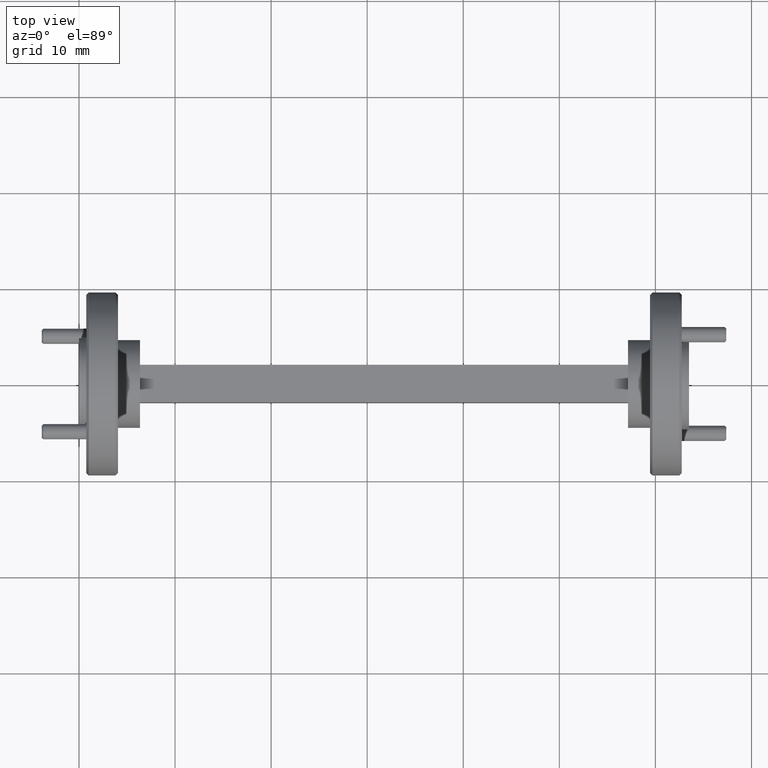
[diagram: clean part render]
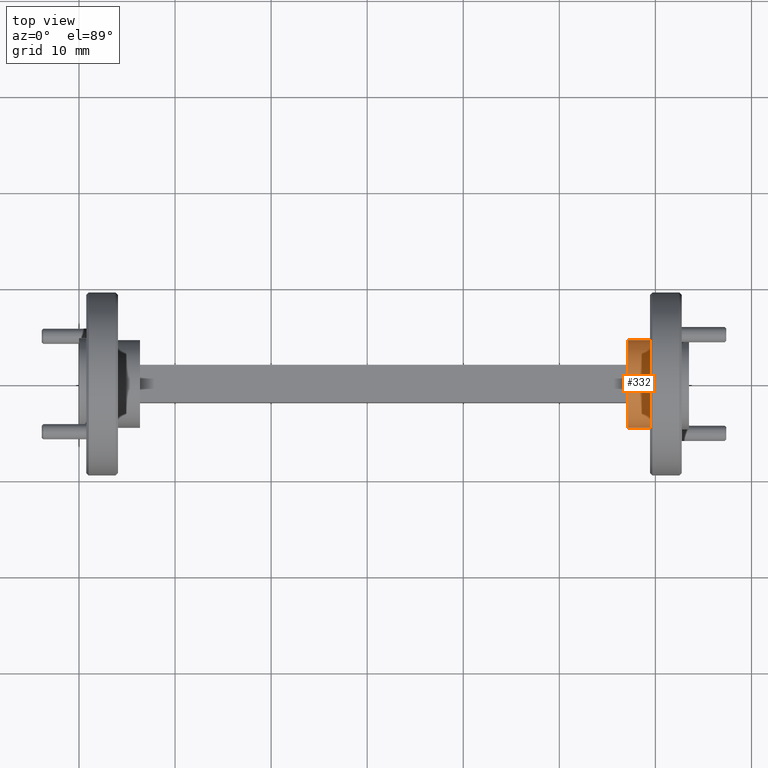
[diagram: same view with one face highlighted and labeled with its STEP entity id]
A machine part, top view. The second image highlights one B-rep face of the part: STEP entity #332.
In plain terms, the highlighted cylindrical surface (partial cylindrical patch) has radius 4.572 mm, axis along (1, 0, -0).
Its self-contained STEP definition (entity closure, byte-faithful):
#198 = ORIENTED_EDGE ( 'NONE', *, *, #3121, .F. ) ;
#269 = CARTESIAN_POINT ( 'NONE',  ( 2.250000000000000000, -0.1799999999999993827, 2.204364238465231508E-17 ) ) ;
#332 = ADVANCED_FACE ( 'NONE', ( #3937 ), #2269, .T. ) ;
#416 = CARTESIAN_POINT ( 'NONE',  ( -1.863127871351692589E-13, 0.1799999999999996603, 0.000000000000000000 ) ) ;
#546 = EDGE_CURVE ( 'NONE', #2319, #1488, #2426, .T. ) ;
#659 = CARTESIAN_POINT ( 'NONE',  ( 2.250000000000000000, 0.1799999999999999378, 0.000000000000000000 ) ) ;
#894 = DIRECTION ( 'NONE',  ( -1.224646799147228962E-16, 1.000000000000000000, 0.000000000000000000 ) ) ;
#1204 = DIRECTION ( 'NONE',  ( 1.000000000000000000, 1.224646799147353454E-16, -0.000000000000000000 ) ) ;
#1215 = ORIENTED_EDGE ( 'NONE', *, *, #3524, .F. ) ;
#1278 = AXIS2_PLACEMENT_3D ( 'NONE', #2891, #1204, #894 ) ;
#1337 = LINE ( 'NONE', #416, #3770 ) ;
#1488 = VERTEX_POINT ( 'NONE', #659 ) ;
#1724 = CARTESIAN_POINT ( 'NONE',  ( 2.340000000000000302, 2.859917723499426963E-16, 0.000000000000000000 ) ) ;
#1761 = DIRECTION ( 'NONE',  ( 1.000000000000000000, 1.224646799147353454E-16, -0.000000000000000000 ) ) ;
#2016 = LINE ( 'NONE', #3041, #2349 ) ;
#2077 = AXIS2_PLACEMENT_3D ( 'NONE', #4141, #4060, #2489 ) ;
#2088 = ORIENTED_EDGE ( 'NONE', *, *, #2336, .T. ) ;
#2269 = CYLINDRICAL_SURFACE ( 'NONE', #1278, 0.1799999999999996603 ) ;
#2319 = VERTEX_POINT ( 'NONE', #269 ) ;
#2336 = EDGE_CURVE ( 'NONE', #2319, #4202, #2016, .T. ) ;
#2349 = VECTOR ( 'NONE', #2724, 39.37007874015748143 ) ;
#2426 = CIRCLE ( 'NONE', #2077, 0.1799999999999996603 ) ;
#2489 = DIRECTION ( 'NONE',  ( 0.000000000000000000, 0.000000000000000000, -1.000000000000000000 ) ) ;
#2644 = CIRCLE ( 'NONE', #2849, 0.1799999999999994937 ) ;
#2724 = DIRECTION ( 'NONE',  ( 1.000000000000000000, 1.224646799147353454E-16, -0.000000000000000000 ) ) ;
#2849 = AXIS2_PLACEMENT_3D ( 'NONE', #1724, #1761, #3115 ) ;
#2891 = CARTESIAN_POINT ( 'NONE',  ( -1.862907434927846262E-13, -5.755786505608412837E-19, 0.000000000000000000 ) ) ;
#3041 = CARTESIAN_POINT ( 'NONE',  ( -1.862686998503999683E-13, -0.1799999999999996603, 2.204364238465231508E-17 ) ) ;
#3115 = DIRECTION ( 'NONE',  ( 0.000000000000000000, 1.000000000000000000, 0.000000000000000000 ) ) ;
#3121 = EDGE_CURVE ( 'NONE', #1488, #3585, #1337, .T. ) ;
#3489 = CARTESIAN_POINT ( 'NONE',  ( 2.340000000000000302, 0.1799999999999997435, 0.000000000000000000 ) ) ;
#3524 = EDGE_CURVE ( 'NONE', #3585, #4202, #2644, .T. ) ;
#3565 = CARTESIAN_POINT ( 'NONE',  ( 2.340000000000000302, -0.1799999999999992162, 2.204364238465230584E-17 ) ) ;
#3585 = VERTEX_POINT ( 'NONE', #3489 ) ;
#3712 = DIRECTION ( 'NONE',  ( 1.000000000000000000, 1.224646799147353454E-16, -0.000000000000000000 ) ) ;
#3770 = VECTOR ( 'NONE', #3712, 39.37007874015748143 ) ;
#3922 = EDGE_LOOP ( 'NONE', ( #4294, #2088, #1215, #198 ) ) ;
#3937 = FACE_OUTER_BOUND ( 'NONE', #3922, .T. ) ;
#4060 = DIRECTION ( 'NONE',  ( -1.000000000000000000, -0.000000000000000000, 0.000000000000000000 ) ) ;
#4141 = CARTESIAN_POINT ( 'NONE',  ( 2.250000000000000000, 2.749699511576165172E-16, 0.000000000000000000 ) ) ;
#4202 = VERTEX_POINT ( 'NONE', #3565 ) ;
#4294 = ORIENTED_EDGE ( 'NONE', *, *, #546, .F. ) ;